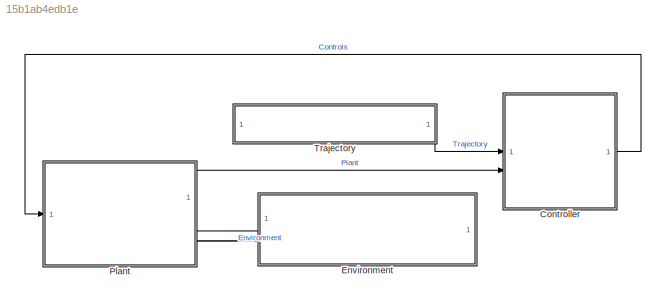
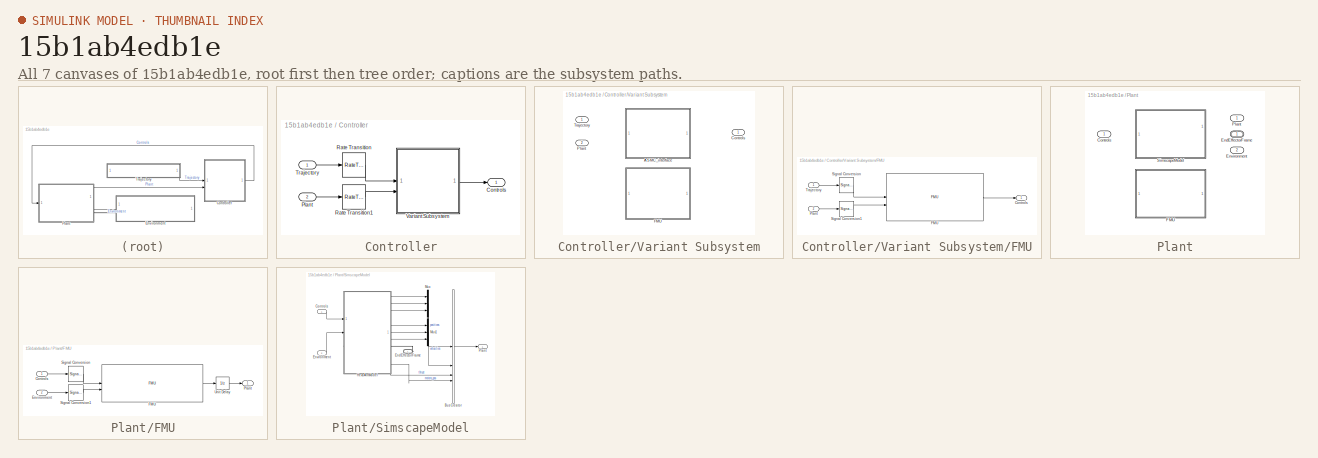
[diagram: thumbnail index - all 7 canvases of the model, root first then tree order]
MODEL slx_15b1ab4edb1e
KIND model
CONFIG AbsTol = auto
CONFIG EnableMultiTasking = off
CONFIG FixedStep = 0.01
CONFIG MaxStep = auto
CONFIG MinStep = auto
CONFIG RelTol = 1e-3
CONFIG SampleTimeConstraint = Unconstrained
CONFIG SolverName = ode4
CONFIG StartTime = 0.0
CONFIG StopTime = 150
BLOCK [SubSystem] Controller
BLOCK [Outport] Controller/Controls
BLOCK [Inport] Controller/Plant
  Port = 2
BLOCK [RateTransition] Controller/Rate Transition
  OutPortSampleTime = 0.01
BLOCK [RateTransition] Controller/Rate Transition1
  OutPortSampleTime = 0.01
BLOCK [Inport] Controller/Trajectory
BLOCK [SubSystem] Controller/Variant Subsystem
  Variant = on
BLOCK [ModelReference] Controller/Variant Subsystem/ASMC_interface
  ModelNameDialog = ASMC_interface.slx
  ModelReferenceVersion = 1.14
  VariantControl = strcmp(Variant.Control,'Model')
BLOCK [Outport] Controller/Variant Subsystem/Controls
BLOCK [SubSystem] Controller/Variant Subsystem/FMU
  VariantControl = strcmp(Variant.Control,'FMU')
BLOCK [Outport] Controller/Variant Subsystem/FMU/Controls
  OutDataTypeStr = Bus: ControlsBusDef
BLOCK [FMU] Controller/Variant Subsystem/FMU/FMU
  ASMC = struct('lambda',reshape([4,4,10,4,4,4,30,40], [8,1]),'k',reshape([0.75,0.75,4,2,2,2,15,28], [8,1]),'Kmin',reshape([0.1,0.1,1,0.1,0.1,0.4,1,1], [8,1]),'mu',reshape([0.1,0.1,0.2,0.2,0.15,0.5,2.25,5.25], [8,1]),'k2',reshape([0.5,0.5,0.01,0.5,1,0.5,0.01,0.01], [8,1]),'K0',reshape([0,0,0,0,0,0,10,10], [8,1]))
  ArmConstants = struct('l1_dim',0.17,'l2_dim',0.17959,'Hexa_to_joint_L',0.08312,'Mass1',0.142,'Mass2',0.143,'Inertia1',reshape([5.484e-05,0,0,0,0.00050874,0,0,0,0.00046501], [3,3]),'Inertia2',reshape([8.085e-05,0,0,0,0.00034964,0,0,0,0.0003034], [3,3]),'MC1',0.11464,'MC2',0.09794,'Servos',struct('T1max',2.5,'T2max',2.5))
  FMUCreateBusObject = off
  FMUInitializeEnumObject = off
  FMUMode = CoSimulation
  FMUName = ASMC_interface.fmu
  HexaConstants = struct('Mass',1.8188,'Inertia',reshape([0.039375,0,0,0,0.040432,0,0,0,0.062148], [3,3]),'invallo',reshape([-105396.2901,105396.2901,0,-105396.2901,105396.2901,0,60856.86465,60856.86465,-121713.7293,60856.86465,60856.86465,-121713.7293,22151.09001,22151.09001,22143.00271,22151.09001,22151.09001,22143.00271,147579.693,147579.693,0,-147579.693,-147579.693,0,-85207.90729,85207.90729,170415.8146,85207....<+132ch>
  MaskDisplay = disp('ASMC_interface [Co-Simulation, v3.0]');\nport_label('output',1,'Controls');\nport_label('input',1,'Trajectory');\nport_label('input',2,'Plant');
  MaskPromptString = ASMC|HexaConstants|ArmConstants
  MaskType = ASMC_interface [Co-Simulation, v3.0]
BLOCK [Inport] Controller/Variant Subsystem/FMU/Plant
  OutDataTypeStr = Bus: PlantBusDef
  Port = 2
BLOCK [SignalConversion] Controller/Variant Subsystem/FMU/Signal Conversion
  ConversionOutput = Nonvirtual bus
  OutDataTypeStr = Bus: TrajectoryBusDef
  OverrideOpt = off
BLOCK [SignalConversion] Controller/Variant Subsystem/FMU/Signal Conversion1
  ConversionOutput = Nonvirtual bus
  OutDataTypeStr = Bus: PlantBusDef
  OverrideOpt = off
BLOCK [Inport] Controller/Variant Subsystem/FMU/Trajectory
  OutDataTypeStr = Bus: TrajectoryBusDef
BLOCK [Inport] Controller/Variant Subsystem/Plant
  Port = 2
BLOCK [Inport] Controller/Variant Subsystem/Trajectory
BLOCK [SubSystem] Environment
  PortSchema = {"entries":[{"content":{"sides":[{"content":{"connectorIds":["LConn1","Out1"]},"type":"ConnectorPlacement.EquallySpacedRectSide","uuid":"5c08cfce-bb37-47ad-9aee-09cd3d0a9d82"},{"content":{"side":"RIGHT"},"type":"ConnectorPlacement.EquallySpacedRectSide","uuid":"54293c39-26a9-438b-b1f6-8d0b93a0680a"},{"content":{"side":"TOP"},"type":"ConnectorPlacement.EquallySpacedRectSide","uuid":"14552c0b-480b-4...<+208ch>
  ReferencedSubsystem = PickingObj
BLOCK [SubSystem] Plant
  PortSchema = {"entries":[{"content":{"sides":[{"content":{"connectorIds":["In1"]},"type":"ConnectorPlacement.EquallySpacedRectSide","uuid":"11bcd53b-55b2-4d69-a1dd-85bd17ae1b26"},{"content":{"connectorIds":["Out1","RConn1","In2"],"side":"RIGHT"},"type":"ConnectorPlacement.EquallySpacedRectSide","uuid":"8deb2c99-cdf2-4c07-9bda-82202a10127f"},{"content":{"side":"TOP"},"type":"ConnectorPlacement.EquallySpacedRect...<+237ch>
  Variant = on
  VariantControl = Choice
BLOCK [Inport] Plant/Controls
BLOCK [PMIOPort] Plant/EndEffectorFrame
  Side = Right
BLOCK [Inport] Plant/Environment
  Port = 2
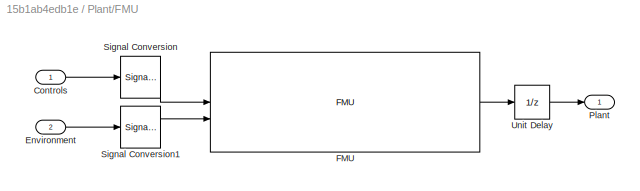
BLOCK [SubSystem] Plant/FMU
  VariantControl = strcmp(Variant.Plant,'FMU')
BLOCK [Inport] Plant/FMU/Controls
  OutDataTypeStr = Bus: ControlsBusDef
BLOCK [Inport] Plant/FMU/Environment
  OutDataTypeStr = Bus: EnvironmentBusDef
  Port = 2
BLOCK [FMU] Plant/FMU/FMU
  FMUCachedDialogLayout = {"Geometry":[1145,301,535,461],"ParameterColumnsWidthConfig":"{\"columns\":[{\"name\":\"Parameter\",\"width\":144},{\"name\":\"Value\",\"width\":115},{\"name\":\"Unit\",\"width\":107},{\"name\":\"Description\",\"width\":149}]}","InputColumnsWidthConfig":"{\"columns\":[{\"name\":\"Name\",\"width\":109},{\"name\":\"Visibility\",\"width\":60},{\"name\":\"Start\",\"width\":101},{\"name\":\"Unit\",\"wi...<+281ch>
  FMUCreateBusObject = off
  FMUDebugLogging = on
  FMUDebugLoggingRedirect = Display
  FMUInitializeEnumObject = off
  FMUMode = CoSimulation
  FMUName = Hexa_interface.fmu
  FMUSampleTime = 0.01
  HexaConstants = struct('Mass',1.8188,'Inertia',reshape([0.039375,0,0,0,0.040432,0,0,0,0.062148], [3,3]),'invallo',reshape([-105396.2901,105396.2901,0,-105396.2901,105396.2901,0,60856.86465,60856.86465,-121713.7293,60856.86465,60856.86465,-121713.7293,22151.09001,22151.09001,22143.00271,22151.09001,22151.09001,22143.00271,147579.693,147579.693,0,-147579.693,-147579.693,0,-85207.90729,85207.90729,170415.8146,85207....<+132ch>
  MaskDisplay = disp('Hexa_interface [Co-Simulation, v3.0]');\nport_label('output',1,'Plant');\nport_label('input',1,'Controls');\nport_label('input',2,'Environment');
  MaskPromptString = HexaConstants
  MaskType = Hexa_interface [Co-Simulation, v3.0]
BLOCK [Outport] Plant/FMU/Plant
  OutDataTypeStr = Bus: PlantBusDef
BLOCK [SignalConversion] Plant/FMU/Signal Conversion
  ConversionOutput = Nonvirtual bus
  OutDataTypeStr = Bus: ControlsBusDef
  OverrideOpt = off
BLOCK [SignalConversion] Plant/FMU/Signal Conversion1
  ConversionOutput = Nonvirtual bus
  OutDataTypeStr = Bus: EnvironmentBusDef
  OverrideOpt = off
BLOCK [UnitDelay] Plant/FMU/Unit Delay
  HasFrameUpgradeWarning = on
  SampleTime = -1
BLOCK [Outport] Plant/Plant
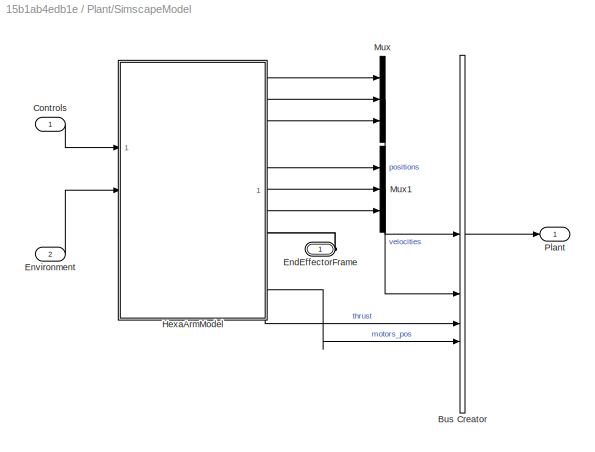
BLOCK [SubSystem] Plant/SimscapeModel
  PortSchema = {"entries":[{"content":{"sides":[{"content":{"connectorIds":["In1"]},"type":"ConnectorPlacement.EquallySpacedRectSide","uuid":"11bcd53b-55b2-4d69-a1dd-85bd17ae1b26"},{"content":{"connectorIds":["Out1","RConn1","In2"],"side":"RIGHT"},"type":"ConnectorPlacement.EquallySpacedRectSide","uuid":"8deb2c99-cdf2-4c07-9bda-82202a10127f"},{"content":{"side":"TOP"},"type":"ConnectorPlacement.EquallySpacedRect...<+237ch>
  VariantControl = strcmp(Variant.Plant,'SimscapeModel')
BLOCK [BusCreator] Plant/SimscapeModel/Bus Creator
  DisplayOption = bar
  InheritFromInputs = on
  Inputs = 4
BLOCK [Inport] Plant/SimscapeModel/Controls
  OutDataTypeStr = Bus: ControlsBusDef
BLOCK [PMIOPort] Plant/SimscapeModel/EndEffectorFrame
  Side = Right
BLOCK [Inport] Plant/SimscapeModel/Environment
  OutDataTypeStr = Bus: EnvironmentBusDef
  Port = 2
BLOCK [SubSystem] Plant/SimscapeModel/HexaArmModel
  NameLocation = top
  PortSchema = {"entries":[{"content":{"sides":[{"content":{"connectorIds":["In1","In2"]},"type":"ConnectorPlacement.EquallySpacedRectSide","uuid":"2dc8ce6a-8c2d-483c-b9eb-4519b8adf1d0"},{"content":{"connectorIds":["Out1","Out2","Out3","Out4","Out5","Out6","LConn1","Out7","Out8"],"side":"RIGHT"},"type":"ConnectorPlacement.EquallySpacedRectSide","uuid":"8919d7d9-a4a6-435e-91a0-6baaf43bb5dd"},{"content":{"side":"T...<+412ch>
  ReferencedSubsystem = HexaArmModel
BLOCK [Mux] Plant/SimscapeModel/Mux
  DisplayOption = bar
  Inputs = 3
BLOCK [Mux] Plant/SimscapeModel/Mux1
  DisplayOption = bar
  Inputs = 3
BLOCK [Outport] Plant/SimscapeModel/Plant
  OutDataTypeStr = Bus: PlantBusDef
BLOCK [SubSystem] Trajectory
  ReferencedSubsystem = TrajectoryGeneration
  ShowPortLabels = SignalName
LINE Controller/Plant:1 -> Controller/Rate Transition1:1
LINE Controller/Rate Transition1:1 -> Controller/Variant Subsystem:2
LINE Controller/Rate Transition:1 -> Controller/Variant Subsystem:1
LINE Controller/Trajectory:1 -> Controller/Rate Transition:1
LINE Controller/Variant Subsystem/FMU/FMU:1 -> Controller/Variant Subsystem/FMU/Controls:1
LINE Controller/Variant Subsystem/FMU/Plant:1 -> Controller/Variant Subsystem/FMU/Signal Conversion1:1
LINE Controller/Variant Subsystem/FMU/Signal Conversion1:1 -> Controller/Variant Subsystem/FMU/FMU:2
LINE Controller/Variant Subsystem/FMU/Signal Conversion:1 -> Controller/Variant Subsystem/FMU/FMU:1
LINE Controller/Variant Subsystem/FMU/Trajectory:1 -> Controller/Variant Subsystem/FMU/Signal Conversion:1
LINE Controller/Variant Subsystem:1 -> Controller/Controls:1
LINE Controller:1 -> Plant:1
LINE Environment:1 -> Plant:2
LINE Plant/FMU/Controls:1 -> Plant/FMU/Signal Conversion:1
LINE Plant/FMU/Environment:1 -> Plant/FMU/Signal Conversion1:1
LINE Plant/FMU/FMU:1 -> Plant/FMU/Unit Delay:1
LINE Plant/FMU/Signal Conversion1:1 -> Plant/FMU/FMU:2
LINE Plant/FMU/Signal Conversion:1 -> Plant/FMU/FMU:1
LINE Plant/FMU/Unit Delay:1 -> Plant/FMU/Plant:1
LINE Plant/SimscapeModel/Bus Creator:1 -> Plant/SimscapeModel/Plant:1
LINE Plant/SimscapeModel/Controls:1 -> Plant/SimscapeModel/HexaArmModel:1
LINE Plant/SimscapeModel/Environment:1 -> Plant/SimscapeModel/HexaArmModel:2
LINE Plant/SimscapeModel/HexaArmModel:1 -> Plant/SimscapeModel/Mux:1
LINE Plant/SimscapeModel/HexaArmModel:2 -> Plant/SimscapeModel/Mux:2
LINE Plant/SimscapeModel/HexaArmModel:3 -> Plant/SimscapeModel/Mux:3
LINE Plant/SimscapeModel/HexaArmModel:4 -> Plant/SimscapeModel/Mux1:1
LINE Plant/SimscapeModel/HexaArmModel:5 -> Plant/SimscapeModel/Mux1:2
LINE Plant/SimscapeModel/HexaArmModel:6 -> Plant/SimscapeModel/Mux1:3
LINE Plant/SimscapeModel/HexaArmModel:7 -> Plant/SimscapeModel/Bus Creator:3
LINE Plant/SimscapeModel/HexaArmModel:8 -> Plant/SimscapeModel/Bus Creator:4
LINE Plant/SimscapeModel/Mux1:1 -> Plant/SimscapeModel/Bus Creator:2
LINE Plant/SimscapeModel/Mux:1 -> Plant/SimscapeModel/Bus Creator:1
LINE Plant:1 -> Controller:2
LINE Trajectory:1 -> Controller:1
PLINE Environment:LConn1 -- Plant:RConn1
PLINE Plant/SimscapeModel/EndEffectorFrame:RConn1 -- Plant/SimscapeModel/HexaArmModel:LConn1
